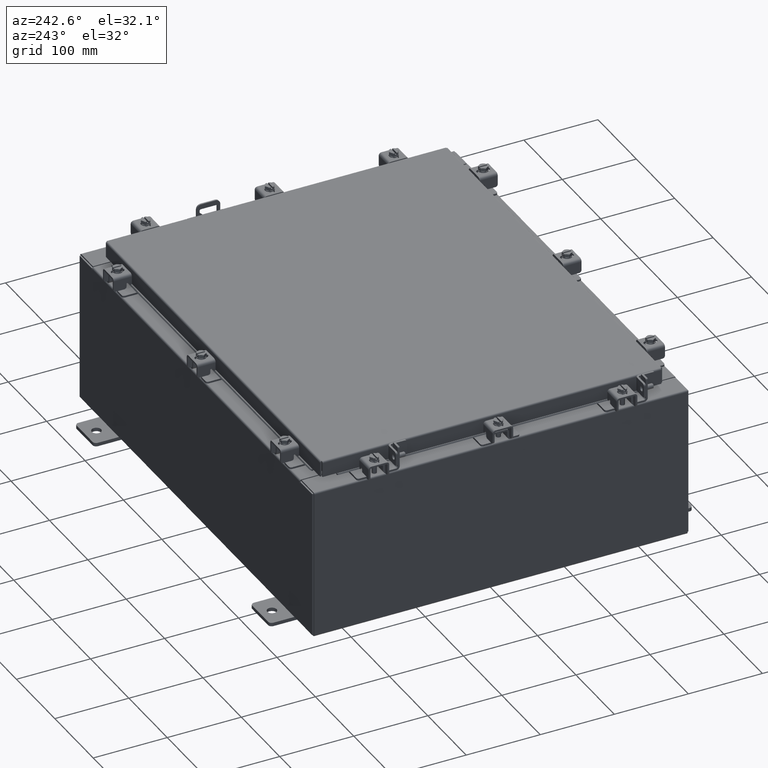
[diagram: clean part render]
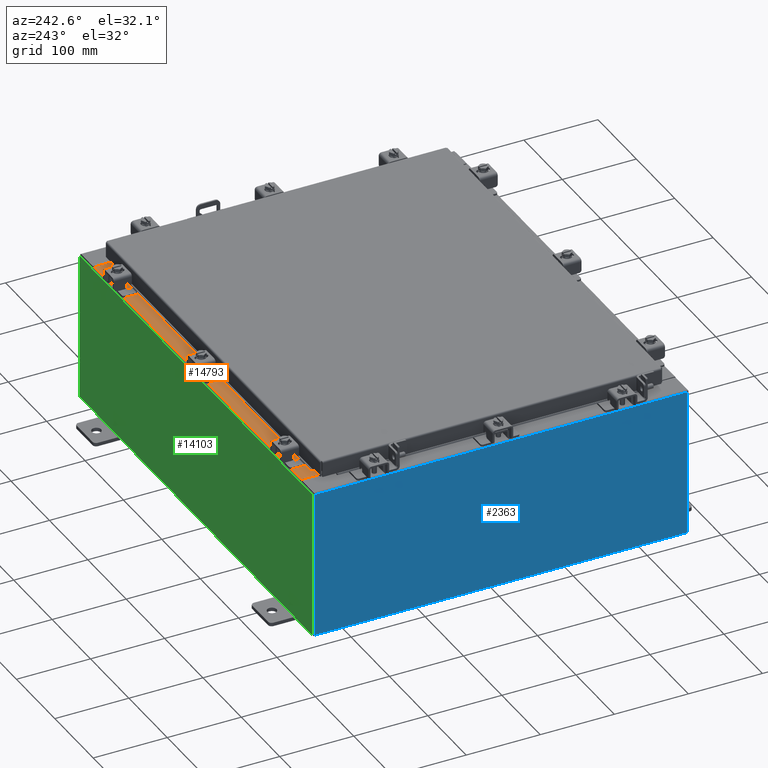
[diagram: same view with three faces highlighted in distinct colors, each labeled with its STEP entity id]
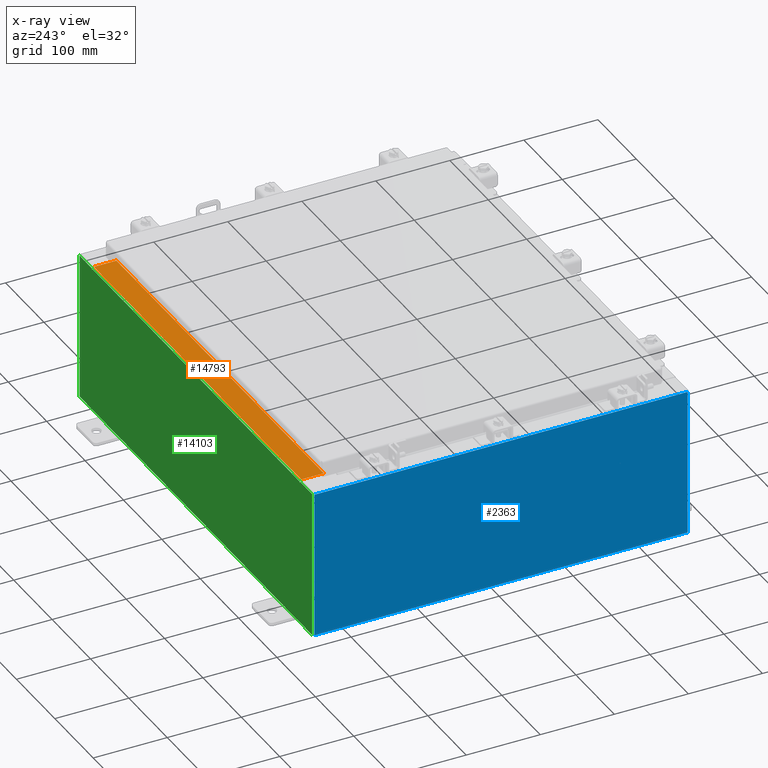
[diagram: x-ray of the same camera — body ghosted, the three highlighted faces saturated]
A machine part, auxiliary view with three faces highlighted in distinct colors.
The next image is the same camera in x-ray (body ghosted, the three faces saturated) — at least one of them is partly hidden behind the body in this view.
Their STEP definitions:

[orange] entity #14793 — the highlighted planar face has unit normal (0, 0, 1).
#1153 = DIRECTION ( 'NONE',  ( -0.0000000000000000000, -1.000000000000000000, 3.566381192773190000E-015 ) ) ;
#1840 = VECTOR ( 'NONE', #22415, 39.37007874015748100 ) ;
#1909 = LINE ( 'NONE', #20323, #10684 ) ;
#4149 = DIRECTION ( 'NONE',  ( -1.000000000000000000, 2.568202152506545800E-017, -9.159187855938968600E-032 ) ) ;
#6526 = LINE ( 'NONE', #12036, #1840 ) ;
#6657 = EDGE_CURVE ( 'NONE', #9222, #11841, #1909, .T. ) ;
#7787 = DIRECTION ( 'NONE',  ( 0.0000000000000000000, -1.000000000000000000, 3.566381192773190000E-015 ) ) ;
#8325 = ORIENTED_EDGE ( 'NONE', *, *, #13162, .F. ) ;
#8680 = DIRECTION ( 'NONE',  ( -1.000000000000000000, 0.0000000000000000000, 0.0000000000000000000 ) ) ;
#9222 = VERTEX_POINT ( 'NONE', #21472 ) ;
#9291 = ORIENTED_EDGE ( 'NONE', *, *, #15499, .T. ) ;
#9472 = CARTESIAN_POINT ( 'NONE',  ( 0.0000000000000000000, 1.425992975200418500E-014, 4.000000000000000000 ) ) ;
#9696 = CARTESIAN_POINT ( 'NONE',  ( 10.63720000000000200, -1.287299999999999900, 4.000000000000004400 ) ) ;
#10539 = VECTOR ( 'NONE', #4149, 39.37007874015748100 ) ;
#10684 = VECTOR ( 'NONE', #1153, 39.37007874015748100 ) ;
#10770 = VERTEX_POINT ( 'NONE', #20344 ) ;
#11841 = VERTEX_POINT ( 'NONE', #9696 ) ;
#12033 = CARTESIAN_POINT ( 'NONE',  ( -10.63720000000000200, -0.08770000000000000000, 4.000000000000000000 ) ) ;
#12036 = CARTESIAN_POINT ( 'NONE',  ( -10.63720000000000200, -0.07469999999999973900, 4.000000000000000000 ) ) ;
#12805 = ORIENTED_EDGE ( 'NONE', *, *, #6657, .F. ) ;
#12961 = PLANE ( 'NONE',  #19327 ) ;
#13162 = EDGE_CURVE ( 'NONE', #10770, #20183, #6526, .T. ) ;
#13455 = EDGE_LOOP ( 'NONE', ( #8325, #16426, #12805, #9291 ) ) ;
#13755 = EDGE_CURVE ( 'NONE', #11841, #10770, #15719, .T. ) ;
#14793 = ADVANCED_FACE ( 'NONE', ( #20814 ), #12961, .T. ) ;
#15170 = VECTOR ( 'NONE', #8680, 39.37007874015748100 ) ;
#15499 = EDGE_CURVE ( 'NONE', #9222, #20183, #19707, .T. ) ;
#15719 = LINE ( 'NONE', #18971, #15170 ) ;
#16426 = ORIENTED_EDGE ( 'NONE', *, *, #13755, .F. ) ;
#18038 = CARTESIAN_POINT ( 'NONE',  ( -2.252313287748606700E-018, -0.08770000000000000000, 4.000000000000000900 ) ) ;
#18172 = DIRECTION ( 'NONE',  ( 0.0000000000000000000, 3.566381192773190000E-015, 1.000000000000000000 ) ) ;
#18971 = CARTESIAN_POINT ( 'NONE',  ( 10.63720000000000400, -1.287299999999999900, 4.000000000000003600 ) ) ;
#19327 = AXIS2_PLACEMENT_3D ( 'NONE', #9472, #18172, #7787 ) ;
#19707 = LINE ( 'NONE', #18038, #10539 ) ;
#20183 = VERTEX_POINT ( 'NONE', #12033 ) ;
#20323 = CARTESIAN_POINT ( 'NONE',  ( 10.63720000000000200, -1.300299999999999800, 4.000000000000004400 ) ) ;
#20344 = CARTESIAN_POINT ( 'NONE',  ( -10.63720000000000200, -1.287299999999999200, 4.000000000000004400 ) ) ;
#20814 = FACE_OUTER_BOUND ( 'NONE', #13455, .T. ) ;
#21472 = CARTESIAN_POINT ( 'NONE',  ( 10.63720000000000400, -0.08769999999999965300, 4.000000000000000000 ) ) ;
#22415 = DIRECTION ( 'NONE',  ( -0.0000000000000000000, 1.000000000000000000, -3.566381192773190000E-015 ) ) ;

[blue] entity #2363 — the highlighted planar face has unit normal (1, 0, 0).
#1653 = DIRECTION ( 'NONE',  ( -3.584876173029202900E-015, -2.757597056176310300E-016, 1.000000000000000000 ) ) ;
#1937 = VECTOR ( 'NONE', #2096, 39.37007874015748100 ) ;
#2096 = DIRECTION ( 'NONE',  ( -0.0000000000000000000, 1.000000000000000000, -0.0000000000000000000 ) ) ;
#2363 = ADVANCED_FACE ( 'NONE', ( #16607 ), #11904, .F. ) ;
#3757 = CARTESIAN_POINT ( 'NONE',  ( -12.00000000000003200, -9.925300000000000000, 7.837599999999999200 ) ) ;
#4514 = CARTESIAN_POINT ( 'NONE',  ( -12.00000000000000400, -9.925299999999998200, 0.01299999999999984700 ) ) ;
#5230 = VERTEX_POINT ( 'NONE', #3757 ) ;
#5670 = EDGE_LOOP ( 'NONE', ( #8795, #12297, #8993, #13184 ) ) ;
#6655 = DIRECTION ( 'NONE',  ( 1.000000000000000000, 0.0000000000000000000, 3.584876173029202900E-015 ) ) ;
#6665 = VERTEX_POINT ( 'NONE', #17521 ) ;
#6992 = VECTOR ( 'NONE', #1653, 39.37007874015748100 ) ;
#7060 = CARTESIAN_POINT ( 'NONE',  ( -12.00000000000003200, -9.925300000000000000, 7.837599999999999200 ) ) ;
#7152 = CARTESIAN_POINT ( 'NONE',  ( -12.00000000000000400, 9.925300000000000000, -4.054232992619534800E-014 ) ) ;
#8511 = EDGE_CURVE ( 'NONE', #6665, #19450, #19181, .T. ) ;
#8638 = CARTESIAN_POINT ( 'NONE',  ( -12.00000000000000400, -9.925300000000000000, -4.601632553852869700E-014 ) ) ;
#8795 = ORIENTED_EDGE ( 'NONE', *, *, #9105, .T. ) ;
#8993 = ORIENTED_EDGE ( 'NONE', *, *, #10893, .F. ) ;
#9105 = EDGE_CURVE ( 'NONE', #5230, #6665, #9962, .T. ) ;
#9962 = LINE ( 'NONE', #7060, #18613 ) ;
#9985 = VECTOR ( 'NONE', #19276, 39.37007874015748100 ) ;
#10893 = EDGE_CURVE ( 'NONE', #16167, #19450, #20428, .T. ) ;
#11904 = PLANE ( 'NONE',  #13817 ) ;
#12297 = ORIENTED_EDGE ( 'NONE', *, *, #8511, .T. ) ;
#13184 = ORIENTED_EDGE ( 'NONE', *, *, #16336, .T. ) ;
#13817 = AXIS2_PLACEMENT_3D ( 'NONE', #17114, #6655, #17036 ) ;
#15695 = DIRECTION ( 'NONE',  ( 0.0000000000000000000, 1.000000000000000000, 0.0000000000000000000 ) ) ;
#16167 = VERTEX_POINT ( 'NONE', #4514 ) ;
#16336 = EDGE_CURVE ( 'NONE', #16167, #5230, #16753, .T. ) ;
#16607 = FACE_OUTER_BOUND ( 'NONE', #5670, .T. ) ;
#16753 = LINE ( 'NONE', #8638, #6992 ) ;
#17036 = DIRECTION ( 'NONE',  ( 3.584876173029202900E-015, 0.0000000000000000000, -1.000000000000000000 ) ) ;
#17114 = CARTESIAN_POINT ( 'NONE',  ( -12.00000000000000400, 0.0000000000000000000, -4.327932773236202500E-014 ) ) ;
#17521 = CARTESIAN_POINT ( 'NONE',  ( -12.00000000000003200, 9.925299999999996500, 7.837599999999999200 ) ) ;
#18610 = CARTESIAN_POINT ( 'NONE',  ( -12.00000000000000400, 9.925299999999998200, 0.01299999999999984700 ) ) ;
#18613 = VECTOR ( 'NONE', #15695, 39.37007874015748100 ) ;
#18715 = CARTESIAN_POINT ( 'NONE',  ( -12.00000000000000400, 9.925300000000000000, 0.01299999999999983600 ) ) ;
#19181 = LINE ( 'NONE', #7152, #9985 ) ;
#19276 = DIRECTION ( 'NONE',  ( 3.584876173029202900E-015, 2.757597056176310300E-016, -1.000000000000000000 ) ) ;
#19450 = VERTEX_POINT ( 'NONE', #18715 ) ;
#20428 = LINE ( 'NONE', #18610, #1937 ) ;

[green] entity #14103 — the highlighted planar face has unit normal (0, -1, 0).
#862 = VECTOR ( 'NONE', #19813, 39.37007874015748100 ) ;
#916 = ORIENTED_EDGE ( 'NONE', *, *, #7278, .F. ) ;
#2124 = VECTOR ( 'NONE', #19589, 39.37007874015748100 ) ;
#2142 = VECTOR ( 'NONE', #21512, 39.37007874015748100 ) ;
#2158 = ORIENTED_EDGE ( 'NONE', *, *, #4995, .T. ) ;
#2178 = VECTOR ( 'NONE', #20423, 39.37007874015748100 ) ;
#2400 = EDGE_CURVE ( 'NONE', #21466, #16352, #7388, .T. ) ;
#2438 = PLANE ( 'NONE',  #7106 ) ;
#2515 = CARTESIAN_POINT ( 'NONE',  ( 0.0000000000000000000, 0.0000000000000000000, 0.0000000000000000000 ) ) ;
#2736 = DIRECTION ( 'NONE',  ( 0.0000000000000000000, 0.0000000000000000000, -1.000000000000000000 ) ) ;
#2844 = CARTESIAN_POINT ( 'NONE',  ( 11.92530000000000000, 0.0000000000000000000, -3.925299999999999600 ) ) ;
#3341 = EDGE_LOOP ( 'NONE', ( #916, #12843, #4008, #18969, #5945, #7435, #13427, #16695, #19623, #16873, #2158, #14536 ) ) ;
#3905 = VECTOR ( 'NONE', #9721, 39.37007874015748100 ) ;
#3973 = CARTESIAN_POINT ( 'NONE',  ( 11.92530000000000000, 0.0000000000000000000, 3.925299999999999600 ) ) ;
#4008 = ORIENTED_EDGE ( 'NONE', *, *, #2400, .F. ) ;
#4101 = CARTESIAN_POINT ( 'NONE',  ( -10.63720000000000400, 1.024442997624098700E-016, 3.912299999999999700 ) ) ;
#4217 = LINE ( 'NONE', #19043, #17540 ) ;
#4311 = DIRECTION ( 'NONE',  ( 0.0000000000000000000, -0.0000000000000000000, -1.000000000000000000 ) ) ;
#4522 = CARTESIAN_POINT ( 'NONE',  ( 10.65587500000000200, 0.0000000000000000000, 3.874949999999999700 ) ) ;
#4527 = EDGE_CURVE ( 'NONE', #21466, #17806, #5579, .T. ) ;
#4645 = CIRCLE ( 'NONE', #14143, 0.01867499999999949400 ) ;
#4983 = CARTESIAN_POINT ( 'NONE',  ( 10.67455000000000200, 0.0000000000000000000, 3.925299999999999600 ) ) ;
#4995 = EDGE_CURVE ( 'NONE', #13626, #14428, #19392, .T. ) ;
#5064 = CARTESIAN_POINT ( 'NONE',  ( -11.92530000000000000, 0.0000000000000000000, 3.925299999999999600 ) ) ;
#5112 = FACE_OUTER_BOUND ( 'NONE', #3341, .T. ) ;
#5393 = DIRECTION ( 'NONE',  ( 0.0000000000000000000, 0.0000000000000000000, -1.000000000000000000 ) ) ;
#5447 = CARTESIAN_POINT ( 'NONE',  ( 11.92530000000000000, 0.0000000000000000000, 3.925299999999999600 ) ) ;
#5579 = LINE ( 'NONE', #4101, #13722 ) ;
#5945 = ORIENTED_EDGE ( 'NONE', *, *, #6307, .F. ) ;
#6032 = CARTESIAN_POINT ( 'NONE',  ( -11.92530000000000000, 0.0000000000000000000, 3.925299999999999600 ) ) ;
#6307 = EDGE_CURVE ( 'NONE', #19037, #17806, #11504, .T. ) ;
#6632 = CARTESIAN_POINT ( 'NONE',  ( -11.92530000000000000, 0.0000000000000000000, -3.925299999999999600 ) ) ;
#6953 = CARTESIAN_POINT ( 'NONE',  ( -10.63720000000000400, -0.0000000000000000000, 3.874949999999999700 ) ) ;
#7009 = VERTEX_POINT ( 'NONE', #14992 ) ;
#7045 = EDGE_CURVE ( 'NONE', #20922, #19037, #4645, .T. ) ;
#7106 = AXIS2_PLACEMENT_3D ( 'NONE', #2515, #14708, #4311 ) ;
#7124 = CARTESIAN_POINT ( 'NONE',  ( 10.63720000000000400, 0.0000000000000000000, 3.912299999999999700 ) ) ;
#7134 = CARTESIAN_POINT ( 'NONE',  ( -10.65587500000000200, 0.0000000000000000000, 3.874949999999999700 ) ) ;
#7242 = VECTOR ( 'NONE', #22050, 39.37007874015748100 ) ;
#7278 = EDGE_CURVE ( 'NONE', #8639, #7009, #12979, .T. ) ;
#7388 = LINE ( 'NONE', #8319, #2178 ) ;
#7435 = ORIENTED_EDGE ( 'NONE', *, *, #7045, .F. ) ;
#7778 = LINE ( 'NONE', #18563, #7242 ) ;
#8319 = CARTESIAN_POINT ( 'NONE',  ( -10.63720000000000400, -0.0000000000000000000, 0.0000000000000000000 ) ) ;
#8591 = CARTESIAN_POINT ( 'NONE',  ( 10.67455000000000200, 0.0000000000000000000, 3.874949999999999700 ) ) ;
#8639 = VERTEX_POINT ( 'NONE', #19497 ) ;
#8995 = VERTEX_POINT ( 'NONE', #4983 ) ;
#9721 = DIRECTION ( 'NONE',  ( -4.340572780400004900E-014, 0.0000000000000000000, -1.000000000000000000 ) ) ;
#9980 = EDGE_CURVE ( 'NONE', #8995, #20922, #21831, .T. ) ;
#10220 = EDGE_CURVE ( 'NONE', #16352, #8639, #18568, .T. ) ;
#11504 = LINE ( 'NONE', #14804, #16083 ) ;
#12235 = CARTESIAN_POINT ( 'NONE',  ( 10.63720000000000400, 0.0000000000000000000, 3.874949999999999700 ) ) ;
#12337 = EDGE_CURVE ( 'NONE', #20716, #13626, #19538, .T. ) ;
#12843 = ORIENTED_EDGE ( 'NONE', *, *, #10220, .F. ) ;
#12893 = EDGE_CURVE ( 'NONE', #17832, #20716, #16015, .T. ) ;
#12979 = LINE ( 'NONE', #17906, #21084 ) ;
#12989 = CARTESIAN_POINT ( 'NONE',  ( -11.92530000000000000, 0.0000000000000000000, -3.925299999999999600 ) ) ;
#13427 = ORIENTED_EDGE ( 'NONE', *, *, #9980, .F. ) ;
#13626 = VERTEX_POINT ( 'NONE', #6632 ) ;
#13722 = VECTOR ( 'NONE', #21407, 39.37007874015748100 ) ;
#13899 = DIRECTION ( 'NONE',  ( 1.000000000000000000, 0.0000000000000000000, 0.0000000000000000000 ) ) ;
#14103 = ADVANCED_FACE ( 'NONE', ( #5112 ), #2438, .F. ) ;
#14143 = AXIS2_PLACEMENT_3D ( 'NONE', #4522, #14924, #2736 ) ;
#14428 = VERTEX_POINT ( 'NONE', #5064 ) ;
#14536 = ORIENTED_EDGE ( 'NONE', *, *, #15742, .T. ) ;
#14708 = DIRECTION ( 'NONE',  ( 0.0000000000000000000, -1.000000000000000000, 0.0000000000000000000 ) ) ;
#14804 = CARTESIAN_POINT ( 'NONE',  ( 10.63720000000000400, 0.0000000000000000000, 0.0000000000000000000 ) ) ;
#14924 = DIRECTION ( 'NONE',  ( -0.0000000000000000000, 1.000000000000000000, -0.0000000000000000000 ) ) ;
#14992 = CARTESIAN_POINT ( 'NONE',  ( -10.67455000000000200, 0.0000000000000000000, 3.925299999999999600 ) ) ;
#15742 = EDGE_CURVE ( 'NONE', #14428, #7009, #7778, .T. ) ;
#16015 = LINE ( 'NONE', #3973, #2124 ) ;
#16083 = VECTOR ( 'NONE', #16497, 39.37007874015748100 ) ;
#16352 = VERTEX_POINT ( 'NONE', #6953 ) ;
#16358 = AXIS2_PLACEMENT_3D ( 'NONE', #7134, #17523, #5393 ) ;
#16497 = DIRECTION ( 'NONE',  ( 0.0000000000000000000, 0.0000000000000000000, 1.000000000000000000 ) ) ;
#16695 = ORIENTED_EDGE ( 'NONE', *, *, #17070, .T. ) ;
#16873 = ORIENTED_EDGE ( 'NONE', *, *, #12337, .T. ) ;
#17070 = EDGE_CURVE ( 'NONE', #8995, #17832, #4217, .T. ) ;
#17523 = DIRECTION ( 'NONE',  ( -0.0000000000000000000, 1.000000000000000000, -0.0000000000000000000 ) ) ;
#17540 = VECTOR ( 'NONE', #13899, 39.37007874015748100 ) ;
#17806 = VERTEX_POINT ( 'NONE', #7124 ) ;
#17832 = VERTEX_POINT ( 'NONE', #5447 ) ;
#17906 = CARTESIAN_POINT ( 'NONE',  ( -10.67455000000000200, -0.0000000000000000000, 0.0000000000000000000 ) ) ;
#18166 = CARTESIAN_POINT ( 'NONE',  ( -10.63720000000000400, 1.024442997624098700E-016, 3.912299999999999700 ) ) ;
#18563 = CARTESIAN_POINT ( 'NONE',  ( -11.92530000000000000, 0.0000000000000000000, 3.925299999999999600 ) ) ;
#18568 = CIRCLE ( 'NONE', #16358, 0.01867499999999949400 ) ;
#18969 = ORIENTED_EDGE ( 'NONE', *, *, #4527, .T. ) ;
#19037 = VERTEX_POINT ( 'NONE', #12235 ) ;
#19043 = CARTESIAN_POINT ( 'NONE',  ( -11.92530000000000000, 0.0000000000000000000, 3.925299999999999600 ) ) ;
#19392 = LINE ( 'NONE', #6032, #862 ) ;
#19497 = CARTESIAN_POINT ( 'NONE',  ( -10.67455000000000200, 0.0000000000000000000, 3.874949999999999700 ) ) ;
#19538 = LINE ( 'NONE', #12989, #2142 ) ;
#19589 = DIRECTION ( 'NONE',  ( 0.0000000000000000000, 0.0000000000000000000, -1.000000000000000000 ) ) ;
#19623 = ORIENTED_EDGE ( 'NONE', *, *, #12893, .T. ) ;
#19813 = DIRECTION ( 'NONE',  ( -0.0000000000000000000, -0.0000000000000000000, 1.000000000000000000 ) ) ;
#20423 = DIRECTION ( 'NONE',  ( 0.0000000000000000000, 0.0000000000000000000, -1.000000000000000000 ) ) ;
#20716 = VERTEX_POINT ( 'NONE', #2844 ) ;
#20922 = VERTEX_POINT ( 'NONE', #8591 ) ;
#21084 = VECTOR ( 'NONE', #21388, 39.37007874015748100 ) ;
#21388 = DIRECTION ( 'NONE',  ( 0.0000000000000000000, 0.0000000000000000000, 1.000000000000000000 ) ) ;
#21407 = DIRECTION ( 'NONE',  ( 1.000000000000000000, 0.0000000000000000000, 0.0000000000000000000 ) ) ;
#21466 = VERTEX_POINT ( 'NONE', #18166 ) ;
#21512 = DIRECTION ( 'NONE',  ( -1.000000000000000000, -0.0000000000000000000, -0.0000000000000000000 ) ) ;
#21831 = LINE ( 'NONE', #22233, #3905 ) ;
#22050 = DIRECTION ( 'NONE',  ( 1.000000000000000000, 0.0000000000000000000, 0.0000000000000000000 ) ) ;
#22233 = CARTESIAN_POINT ( 'NONE',  ( 10.67454999999983300, -0.0000000000000000000, -4.633366117301815000E-013 ) ) ;